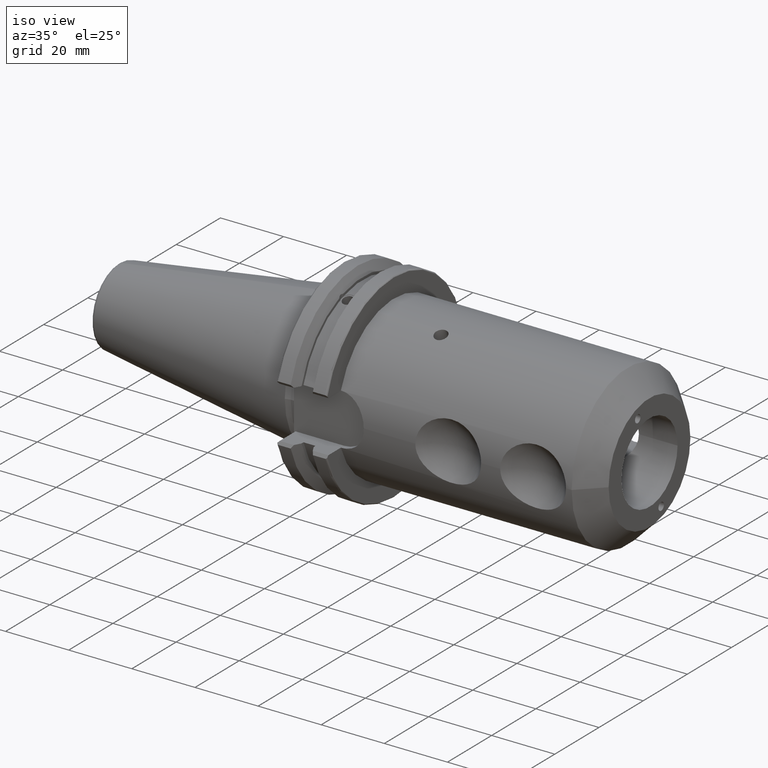
[diagram: clean part render]
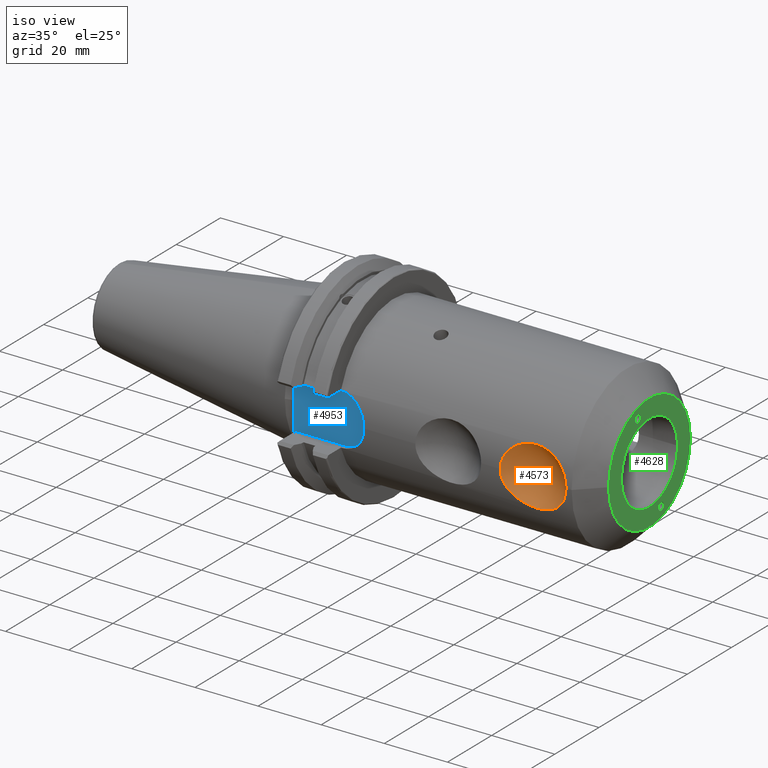
[diagram: same view with three faces highlighted in distinct colors, each labeled with its STEP entity id]
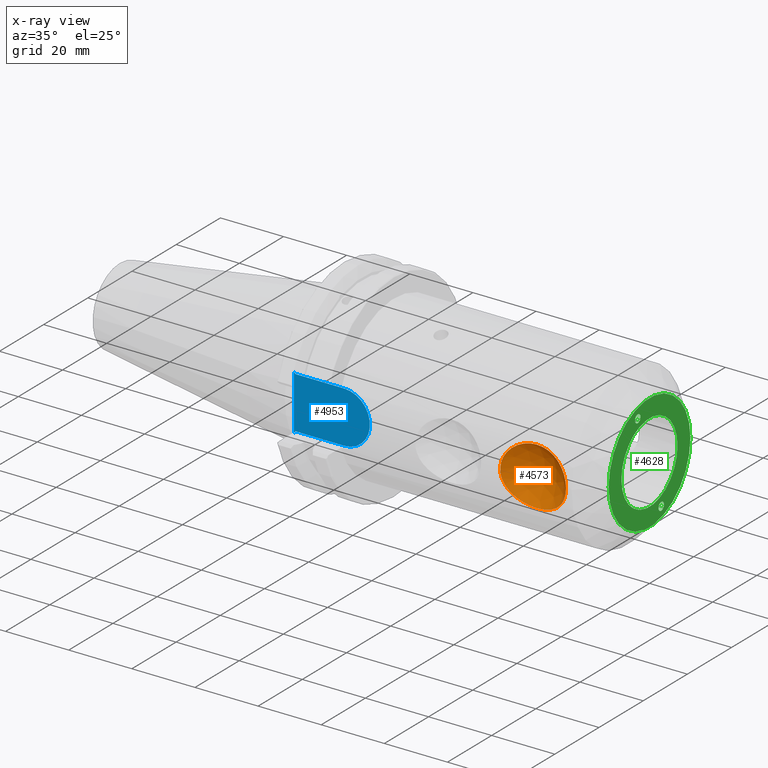
[diagram: x-ray of the same camera — body ghosted, the three highlighted faces saturated]
A machine part, iso view with three faces highlighted in distinct colors.
The next image is the same camera in x-ray (body ghosted, the three faces saturated) — at least one of them is partly hidden behind the body in this view.
Their STEP definitions:

[orange] entity #4573 — the highlighted spherical surface has radius 12.5 mm.
#783=CARTESIAN_POINT('',(7.047694862336E1,-2.54E1,-1.202158074993E-14));
#784=CARTESIAN_POINT('',(7.047694862336E1,-2.54E1,4.345252486248E-1));
#785=CARTESIAN_POINT('',(7.054299005487E1,-2.537854261233E1,1.300495470354E0));
#786=CARTESIAN_POINT('',(7.087622476305E1,-2.527269241105E1,2.648428381887E0));
#787=CARTESIAN_POINT('',(7.139618073902E1,-2.511457205880E1,3.856537520229E0));
#788=CARTESIAN_POINT('',(7.209834561804E1,-2.491418430195E1,4.986086699442E0));
#789=CARTESIAN_POINT('',(7.299810637593E1,-2.467981898796E1,6.033999014019E0));
#790=CARTESIAN_POINT('',(7.405089032830E1,-2.443813562469E1,6.941229543826E0));
#791=CARTESIAN_POINT('',(7.520175397806E1,-2.421345748904E1,7.683172643911E0));
#792=CARTESIAN_POINT('',(7.646683770903E1,-2.401330551024E1,8.284084549435E0));
#793=CARTESIAN_POINT('',(7.786956219868E1,-2.384942507127E1,8.741647281957E0));
#794=CARTESIAN_POINT('',(7.936606315822E1,-2.374277776130E1,9.025078382564E0));
#795=CARTESIAN_POINT('',(8.089197634563E1,-2.370620822699E1,9.119943776622E0));
#796=CARTESIAN_POINT('',(8.241697655264E1,-2.374199306237E1,9.027125071638E0));
#797=CARTESIAN_POINT('',(8.391311621894E1,-2.384779915915E1,8.746043620717E0));
#798=CARTESIAN_POINT('',(8.531712354783E1,-2.401107376761E1,8.290515295569E0));
#799=CARTESIAN_POINT('',(8.658579628225E1,-2.421120849408E1,7.690263558634E0));
#800=CARTESIAN_POINT('',(8.774139495729E1,-2.443644481031E1,6.947259686029E0));
#801=CARTESIAN_POINT('',(8.879879591625E1,-2.467901997649E1,6.037456269455E0));
#802=CARTESIAN_POINT('',(8.970154731703E1,-2.491414334940E1,4.986454529377E0));
#803=CARTESIAN_POINT('',(9.040393193153E1,-2.511460827737E1,3.856250179249E0));
#804=CARTESIAN_POINT('',(9.092358597963E1,-2.527263376251E1,2.648914164204E0));
#805=CARTESIAN_POINT('',(9.125696506910E1,-2.537852776049E1,1.300891629968E0));
#806=CARTESIAN_POINT('',(9.132305137664E1,-2.54E1,4.347064167153E-1));
#807=CARTESIAN_POINT('',(9.132305137664E1,-2.54E1,0.E0));
#1078=CARTESIAN_POINT('',(9.132305137664E1,-2.54E1,0.E0));
#1079=CARTESIAN_POINT('',(9.132305137664E1,-2.54E1,-4.336174302202E-1));
#1080=CARTESIAN_POINT('',(9.125778170329E1,-2.537878821992E1,
-1.291694580151E0));
#1081=CARTESIAN_POINT('',(9.093052856739E1,-2.527485317571E1,
-2.621827246181E0));
#1082=CARTESIAN_POINT('',(9.044330519173E1,-2.512650670892E1,
-3.770035759497E0));
#1083=CARTESIAN_POINT('',(8.981887465662E1,-2.494717512692E1,
-4.810546106108E0));
#1084=CARTESIAN_POINT('',(8.905782909455E1,-2.474491905043E1,
-5.755932445939E0));
#1085=CARTESIAN_POINT('',(8.817350826137E1,-2.453278131575E1,
-6.596778045431E0));
#1086=CARTESIAN_POINT('',(8.720922336732E1,-2.432923992440E1,
-7.307738539017E0));
#1087=CARTESIAN_POINT('',(8.614681849560E1,-2.413789489795E1,
-7.914354637540E0));
#1088=CARTESIAN_POINT('',(8.495710200768E1,-2.396502205413E1,
-8.420939814647E0));
#1089=CARTESIAN_POINT('',(8.365846315664E1,-2.382676331392E1,
-8.802305891848E0));
#1090=CARTESIAN_POINT('',(8.228963418671E1,-2.373826991178E1,
-9.036725263521E0));
#1091=CARTESIAN_POINT('',(8.090219161412E1,-2.370831221827E1,
-9.114511327901E0));
#1092=CARTESIAN_POINT('',(7.951475632468E1,-2.373807918496E1,
-9.037223021896E0));
#1093=CARTESIAN_POINT('',(7.814555044568E1,-2.382641363128E1,
-8.803247064553E0));
#1094=CARTESIAN_POINT('',(7.684631575336E1,-2.396458371824E1,
-8.422183257419E0));
#1095=CARTESIAN_POINT('',(7.565579445233E1,-2.413746087768E1,
-7.915678931969E0));
#1096=CARTESIAN_POINT('',(7.459259252481E1,-2.432887733345E1,
-7.308952128981E0));
#1097=CARTESIAN_POINT('',(7.362757814782E1,-2.453253015023E1,
-6.597726078045E0));
#1098=CARTESIAN_POINT('',(7.274262964276E1,-2.474479835676E1,
-5.756478379484E0));
#1099=CARTESIAN_POINT('',(7.198111729311E1,-2.494717514432E1,
-4.810578710417E0));
#1100=CARTESIAN_POINT('',(7.135652928168E1,-2.512655544556E1,
-3.769733385002E0));
#1101=CARTESIAN_POINT('',(7.086933156106E1,-2.527489696954E1,
-2.621405526628E0));
#1102=CARTESIAN_POINT('',(7.054217910393E1,-2.537880099710E1,
-1.291375916614E0));
#1103=CARTESIAN_POINT('',(7.047694862336E1,-2.54E1,-4.334895468123E-1));
#1104=CARTESIAN_POINT('',(7.047694862336E1,-2.54E1,-1.202158074993E-14));
#2638=CARTESIAN_POINT('',(9.132305137664E1,-2.54E1,0.E0));
#2639=VERTEX_POINT('',#2638);
#2640=VERTEX_POINT('',#783);
#4564=CARTESIAN_POINT('',(8.09E1,-3.23E1,0.E0));
#4565=DIRECTION('',(1.E0,0.E0,0.E0));
#4566=DIRECTION('',(0.E0,-1.E0,0.E0));
#4567=AXIS2_PLACEMENT_3D('',#4564,#4565,#4566);
#4568=SPHERICAL_SURFACE('',#4567,1.25E1);
#4569=ORIENTED_EDGE('',*,*,#3459,.T.);
#4570=ORIENTED_EDGE('',*,*,#3684,.T.);
#4571=EDGE_LOOP('',(#4569,#4570));
#4572=FACE_OUTER_BOUND('',#4571,.F.);
#4573=ADVANCED_FACE('',(#4572),#4568,.F.);
#808=B_SPLINE_CURVE_WITH_KNOTS('',3,(#783,#784,#785,#786,#787,#788,#789,#790,
#791,#792,#793,#794,#795,#796,#797,#798,#799,#800,#801,#802,#803,#804,#805,#806,
#807),.UNSPECIFIED.,.F.,.F.,(4,1,1,1,1,1,1,1,1,1,1,1,1,1,1,1,1,1,1,1,1,1,4),(
0.E0,4.545454545455E-2,9.090909090909E-2,1.363636363636E-1,1.818181818182E-1,
2.272727272727E-1,2.727272727273E-1,3.181818181818E-1,3.636363636364E-1,
4.090909090909E-1,4.545454545455E-1,5.E-1,5.454545454545E-1,5.909090909091E-1,
6.363636363636E-1,6.818181818182E-1,7.272727272727E-1,7.727272727273E-1,
8.181818181818E-1,8.636363636364E-1,9.090909090909E-1,9.545454545455E-1,1.E0),
.UNSPECIFIED.);
#1105=B_SPLINE_CURVE_WITH_KNOTS('',3,(#1078,#1079,#1080,#1081,#1082,#1083,#1084,
#1085,#1086,#1087,#1088,#1089,#1090,#1091,#1092,#1093,#1094,#1095,#1096,#1097,
#1098,#1099,#1100,#1101,#1102,#1103,#1104),.UNSPECIFIED.,.F.,.F.,(4,1,1,1,1,1,1,
1,1,1,1,1,1,1,1,1,1,1,1,1,1,1,1,1,4),(0.E0,4.166666666667E-2,8.333333333333E-2,
1.25E-1,1.666666666667E-1,2.083333333333E-1,2.5E-1,2.916666666667E-1,
3.333333333333E-1,3.75E-1,4.166666666667E-1,4.583333333333E-1,5.E-1,
5.416666666667E-1,5.833333333333E-1,6.25E-1,6.666666666667E-1,7.083333333333E-1,
7.5E-1,7.916666666667E-1,8.333333333333E-1,8.75E-1,9.166666666667E-1,
9.583333333333E-1,1.E0),.UNSPECIFIED.);
#3459=EDGE_CURVE('',#2640,#2639,#808,.T.);
#3684=EDGE_CURVE('',#2639,#2640,#1105,.T.);

[blue] entity #4953 — the highlighted planar face has unit normal (0, 1, 0).
#572=DIRECTION('',(7.071067811865E-1,0.E0,7.071067811865E-1));
#573=VECTOR('',#572,7.071067811865E-1);
#574=CARTESIAN_POINT('',(3.175E0,-2.26E1,-8.69E0));
#575=LINE('',#574,#573);
#666=DIRECTION('',(-7.071067811865E-1,0.E0,7.071067811865E-1));
#667=VECTOR('',#666,7.071067811865E-1);
#668=CARTESIAN_POINT('',(3.675E0,-2.26E1,8.19E0));
#669=LINE('',#668,#667);
#2305=DIRECTION('',(-1.E0,0.E0,0.E0));
#2306=VECTOR('',#2305,1.538E1);
#2307=CARTESIAN_POINT('',(1.9055E1,-2.26E1,8.19E0));
#2308=LINE('',#2307,#2306);
#2309=CARTESIAN_POINT('',(1.905E1,-2.26E1,0.E0));
#2310=DIRECTION('',(0.E0,-1.E0,0.E0));
#2311=DIRECTION('',(6.105004961335E-4,0.E0,-9.999998136446E-1));
#2312=AXIS2_PLACEMENT_3D('',#2309,#2310,#2311);
#2314=DIRECTION('',(1.E0,0.E0,0.E0));
#2315=VECTOR('',#2314,1.538E1);
#2316=CARTESIAN_POINT('',(3.675E0,-2.26E1,-8.19E0));
#2317=LINE('',#2316,#2315);
#2318=DIRECTION('',(0.E0,0.E0,1.E0));
#2319=VECTOR('',#2318,1.738E1);
#2320=CARTESIAN_POINT('',(3.175E0,-2.26E1,-8.69E0));
#2321=LINE('',#2320,#2319);
#2520=CARTESIAN_POINT('',(3.175E0,-2.26E1,8.69E0));
#2522=VERTEX_POINT('',#2520);
#2529=CARTESIAN_POINT('',(3.175E0,-2.26E1,-8.69E0));
#2531=VERTEX_POINT('',#2529);
#2675=CARTESIAN_POINT('',(1.9055E1,-2.26E1,-8.19E0));
#2676=CARTESIAN_POINT('',(1.9055E1,-2.26E1,8.19E0));
#2677=VERTEX_POINT('',#2675);
#2678=VERTEX_POINT('',#2676);
#2682=CARTESIAN_POINT('',(3.675E0,-2.26E1,-8.19E0));
#2683=VERTEX_POINT('',#2682);
#2684=CARTESIAN_POINT('',(3.675E0,-2.26E1,8.19E0));
#2685=VERTEX_POINT('',#2684);
#4940=CARTESIAN_POINT('',(0.E0,-2.26E1,0.E0));
#4941=DIRECTION('',(0.E0,1.E0,0.E0));
#4942=DIRECTION('',(1.E0,0.E0,0.E0));
#4943=AXIS2_PLACEMENT_3D('',#4940,#4941,#4942);
#4944=PLANE('',#4943);
#4945=ORIENTED_EDGE('',*,*,#3385,.F.);
#4946=ORIENTED_EDGE('',*,*,#3401,.F.);
#4947=ORIENTED_EDGE('',*,*,#3431,.F.);
#4948=ORIENTED_EDGE('',*,*,#3228,.F.);
#4949=ORIENTED_EDGE('',*,*,#3260,.F.);
#4950=ORIENTED_EDGE('',*,*,#2878,.T.);
#4951=EDGE_LOOP('',(#4945,#4946,#4947,#4948,#4949,#4950));
#4952=FACE_OUTER_BOUND('',#4951,.F.);
#4953=ADVANCED_FACE('',(#4952),#4944,.F.);
#2313=CIRCLE('',#2312,8.190001526251E0);
#2878=EDGE_CURVE('',#2531,#2522,#2321,.T.);
#3228=EDGE_CURVE('',#2683,#2677,#2317,.T.);
#3260=EDGE_CURVE('',#2531,#2683,#575,.T.);
#3385=EDGE_CURVE('',#2685,#2522,#669,.T.);
#3401=EDGE_CURVE('',#2678,#2685,#2308,.T.);
#3431=EDGE_CURVE('',#2677,#2678,#2313,.T.);

[green] entity #4628 — the highlighted planar face has unit normal (1, 0, 0).
#1976=CARTESIAN_POINT('',(1.E2,0.E0,0.E0));
#1977=DIRECTION('',(-1.E0,0.E0,0.E0));
#1978=DIRECTION('',(0.E0,1.E0,0.E0));
#1979=AXIS2_PLACEMENT_3D('',#1976,#1977,#1978);
#1981=CARTESIAN_POINT('',(1.E2,0.E0,0.E0));
#1982=DIRECTION('',(1.E0,0.E0,0.E0));
#1983=DIRECTION('',(0.E0,1.E0,0.E0));
#1984=AXIS2_PLACEMENT_3D('',#1981,#1982,#1983);
#1986=CARTESIAN_POINT('',(1.E2,0.E0,0.E0));
#1987=DIRECTION('',(1.E0,0.E0,0.E0));
#1988=DIRECTION('',(0.E0,1.E0,0.E0));
#1989=AXIS2_PLACEMENT_3D('',#1986,#1987,#1988);
#1991=CARTESIAN_POINT('',(1.E2,0.E0,0.E0));
#1992=DIRECTION('',(1.E0,0.E0,0.E0));
#1993=DIRECTION('',(0.E0,-1.E0,0.E0));
#1994=AXIS2_PLACEMENT_3D('',#1991,#1992,#1993);
#1996=CARTESIAN_POINT('',(1.E2,-5.302414301297E0,1.581675050863E1));
#1997=CARTESIAN_POINT('',(1.E2,-5.597089338730E0,1.581675050863E1));
#1998=CARTESIAN_POINT('',(1.E2,-6.116379210506E0,1.563041506616E1));
#1999=CARTESIAN_POINT('',(1.E2,-6.498688068652E0,1.502762890897E1));
#2000=CARTESIAN_POINT('',(1.E2,-6.578128343915E0,1.456523562218E1));
#2001=CARTESIAN_POINT('',(1.E2,-6.497873704744E0,1.410284233539E1));
#2002=CARTESIAN_POINT('',(1.E2,-6.114503223721E0,1.350005617821E1));
#2003=CARTESIAN_POINT('',(1.E2,-5.594885179233E0,1.331372073573E1));
#2004=CARTESIAN_POINT('',(1.E2,-5.300210141799E0,1.331372073573E1));
#2006=CARTESIAN_POINT('',(1.E2,-5.300210141799E0,1.331372073573E1));
#2007=CARTESIAN_POINT('',(1.E2,-5.005535104365E0,1.331372073573E1));
#2008=CARTESIAN_POINT('',(1.E2,-4.486245232590E0,1.350005617821E1));
#2009=CARTESIAN_POINT('',(1.E2,-4.103936374443E0,1.410284233539E1));
#2010=CARTESIAN_POINT('',(1.E2,-4.024496099181E0,1.456523562218E1));
#2011=CARTESIAN_POINT('',(1.E2,-4.104750738352E0,1.502762890897E1));
#2012=CARTESIAN_POINT('',(1.E2,-4.488121219375E0,1.563041506616E1));
#2013=CARTESIAN_POINT('',(1.E2,-5.007739263863E0,1.581675050863E1));
#2014=CARTESIAN_POINT('',(1.E2,-5.302414301297E0,1.581675050863E1));
#2016=CARTESIAN_POINT('',(1.E2,5.302414301297E0,-1.581675050863E1));
#2017=CARTESIAN_POINT('',(1.E2,5.597089338730E0,-1.581675050863E1));
#2018=CARTESIAN_POINT('',(1.E2,6.116379210506E0,-1.563041506616E1));
#2019=CARTESIAN_POINT('',(1.E2,6.498688068652E0,-1.502762890897E1));
#2020=CARTESIAN_POINT('',(1.E2,6.578128343915E0,-1.456523562218E1));
#2021=CARTESIAN_POINT('',(1.E2,6.497873704744E0,-1.410284233539E1));
#2022=CARTESIAN_POINT('',(1.E2,6.114503223721E0,-1.350005617821E1));
#2023=CARTESIAN_POINT('',(1.E2,5.594885179233E0,-1.331372073573E1));
#2024=CARTESIAN_POINT('',(1.E2,5.300210141799E0,-1.331372073573E1));
#2026=CARTESIAN_POINT('',(1.E2,5.300210141799E0,-1.331372073573E1));
#2027=CARTESIAN_POINT('',(1.E2,5.005535104365E0,-1.331372073573E1));
#2028=CARTESIAN_POINT('',(1.E2,4.486245232590E0,-1.350005617821E1));
#2029=CARTESIAN_POINT('',(1.E2,4.103936374443E0,-1.410284233539E1));
#2030=CARTESIAN_POINT('',(1.E2,4.024496099181E0,-1.456523562218E1));
#2031=CARTESIAN_POINT('',(1.E2,4.104750738352E0,-1.502762890897E1));
#2032=CARTESIAN_POINT('',(1.E2,4.488121219375E0,-1.563041506616E1));
#2033=CARTESIAN_POINT('',(1.E2,5.007739263863E0,-1.581675050863E1));
#2034=CARTESIAN_POINT('',(1.E2,5.302414301297E0,-1.581675050863E1));
#2602=CARTESIAN_POINT('',(1.E2,1.85E1,0.E0));
#2604=VERTEX_POINT('',#2602);
#2606=CARTESIAN_POINT('',(1.E2,-1.85E1,0.E0));
#2608=VERTEX_POINT('',#2606);
#2630=CARTESIAN_POINT('',(1.E2,1.27E1,0.E0));
#2631=CARTESIAN_POINT('',(1.E2,-1.27E1,0.E0));
#2632=VERTEX_POINT('',#2630);
#2633=VERTEX_POINT('',#2631);
#2661=VERTEX_POINT('',#1996);
#2662=VERTEX_POINT('',#2004);
#2665=VERTEX_POINT('',#2016);
#2666=VERTEX_POINT('',#2024);
#4602=CARTESIAN_POINT('',(1.E2,0.E0,0.E0));
#4603=DIRECTION('',(1.E0,0.E0,0.E0));
#4604=DIRECTION('',(0.E0,-1.E0,0.E0));
#4605=AXIS2_PLACEMENT_3D('',#4602,#4603,#4604);
#4606=PLANE('',#4605);
#4607=ORIENTED_EDGE('',*,*,#4584,.T.);
#4608=ORIENTED_EDGE('',*,*,#4595,.F.);
#4609=EDGE_LOOP('',(#4607,#4608));
#4610=FACE_OUTER_BOUND('',#4609,.F.);
#4612=ORIENTED_EDGE('',*,*,#4611,.T.);
#4613=ORIENTED_EDGE('',*,*,#3645,.T.);
#4614=EDGE_LOOP('',(#4612,#4613));
#4615=FACE_BOUND('',#4614,.F.);
#4617=ORIENTED_EDGE('',*,*,#4616,.T.);
#4619=ORIENTED_EDGE('',*,*,#4618,.T.);
#4620=EDGE_LOOP('',(#4617,#4619));
#4621=FACE_BOUND('',#4620,.F.);
#4623=ORIENTED_EDGE('',*,*,#4622,.T.);
#4625=ORIENTED_EDGE('',*,*,#4624,.T.);
#4626=EDGE_LOOP('',(#4623,#4625));
#4627=FACE_BOUND('',#4626,.F.);
#4628=ADVANCED_FACE('',(#4610,#4615,#4621,#4627),#4606,.T.);
#1980=CIRCLE('',#1979,1.85E1);
#1985=CIRCLE('',#1984,1.85E1);
#1990=CIRCLE('',#1989,1.27E1);
#1995=CIRCLE('',#1994,1.27E1);
#2005=B_SPLINE_CURVE_WITH_KNOTS('',3,(#1996,#1997,#1998,#1999,#2000,#2001,#2002,
#2003,#2004),.UNSPECIFIED.,.F.,.F.,(4,1,1,1,1,1,4),(0.E0,2.5E-1,3.75E-1,5.E-1,
6.25E-1,7.5E-1,1.E0),.UNSPECIFIED.);
#2015=B_SPLINE_CURVE_WITH_KNOTS('',3,(#2006,#2007,#2008,#2009,#2010,#2011,#2012,
#2013,#2014),.UNSPECIFIED.,.F.,.F.,(4,1,1,1,1,1,4),(0.E0,2.5E-1,3.75E-1,5.E-1,
6.25E-1,7.5E-1,1.E0),.UNSPECIFIED.);
#2025=B_SPLINE_CURVE_WITH_KNOTS('',3,(#2016,#2017,#2018,#2019,#2020,#2021,#2022,
#2023,#2024),.UNSPECIFIED.,.F.,.F.,(4,1,1,1,1,1,4),(0.E0,2.5E-1,3.75E-1,5.E-1,
6.25E-1,7.5E-1,1.E0),.UNSPECIFIED.);
#2035=B_SPLINE_CURVE_WITH_KNOTS('',3,(#2026,#2027,#2028,#2029,#2030,#2031,#2032,
#2033,#2034),.UNSPECIFIED.,.F.,.F.,(4,1,1,1,1,1,4),(0.E0,2.5E-1,3.75E-1,5.E-1,
6.25E-1,7.5E-1,1.E0),.UNSPECIFIED.);
#3645=EDGE_CURVE('',#2633,#2632,#1995,.T.);
#4584=EDGE_CURVE('',#2604,#2608,#1980,.T.);
#4595=EDGE_CURVE('',#2604,#2608,#1985,.T.);
#4611=EDGE_CURVE('',#2632,#2633,#1990,.T.);
#4616=EDGE_CURVE('',#2661,#2662,#2005,.T.);
#4618=EDGE_CURVE('',#2662,#2661,#2015,.T.);
#4622=EDGE_CURVE('',#2665,#2666,#2025,.T.);
#4624=EDGE_CURVE('',#2666,#2665,#2035,.T.);